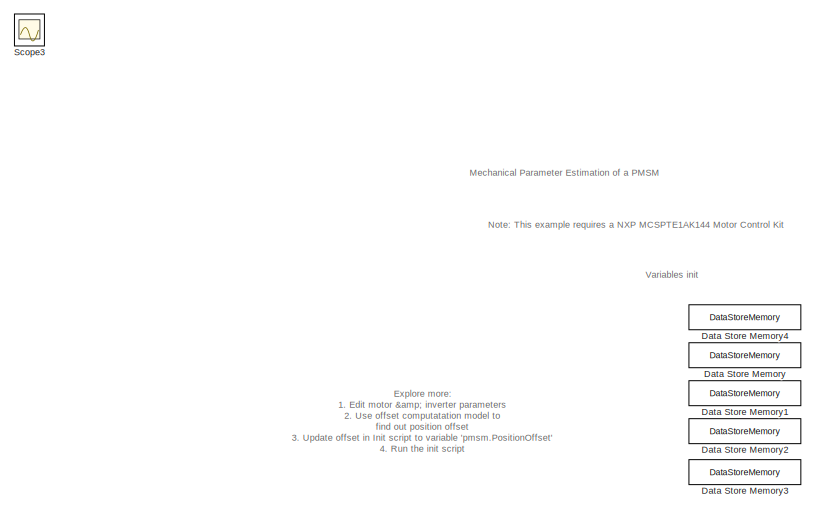
[diagram: root canvas - part 1/2, top left region]
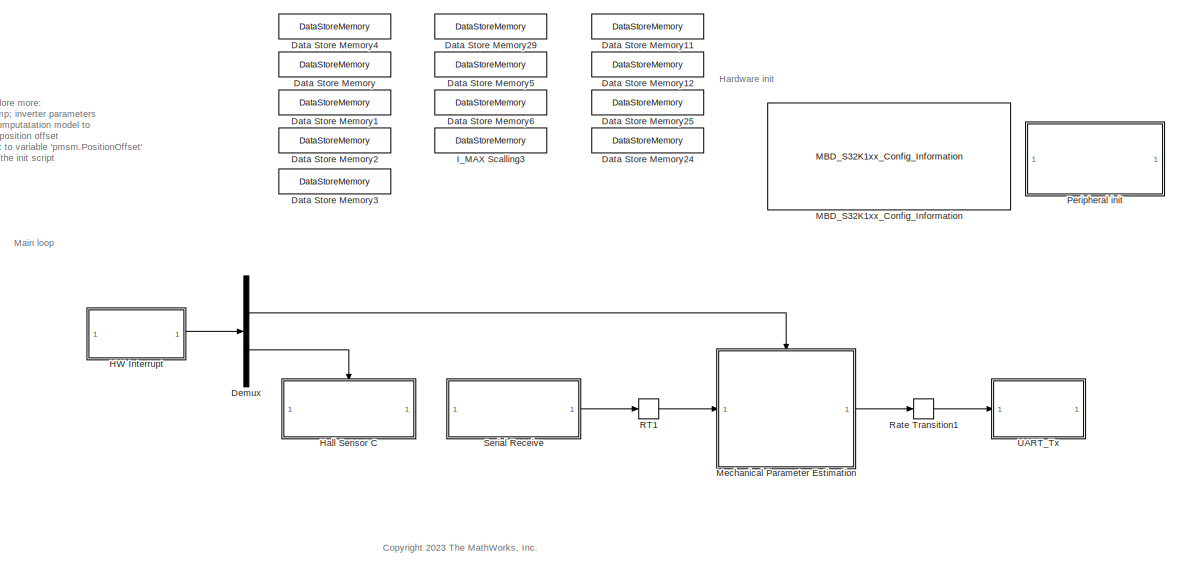
[diagram: root canvas - part 2/2, full width, bottom band]
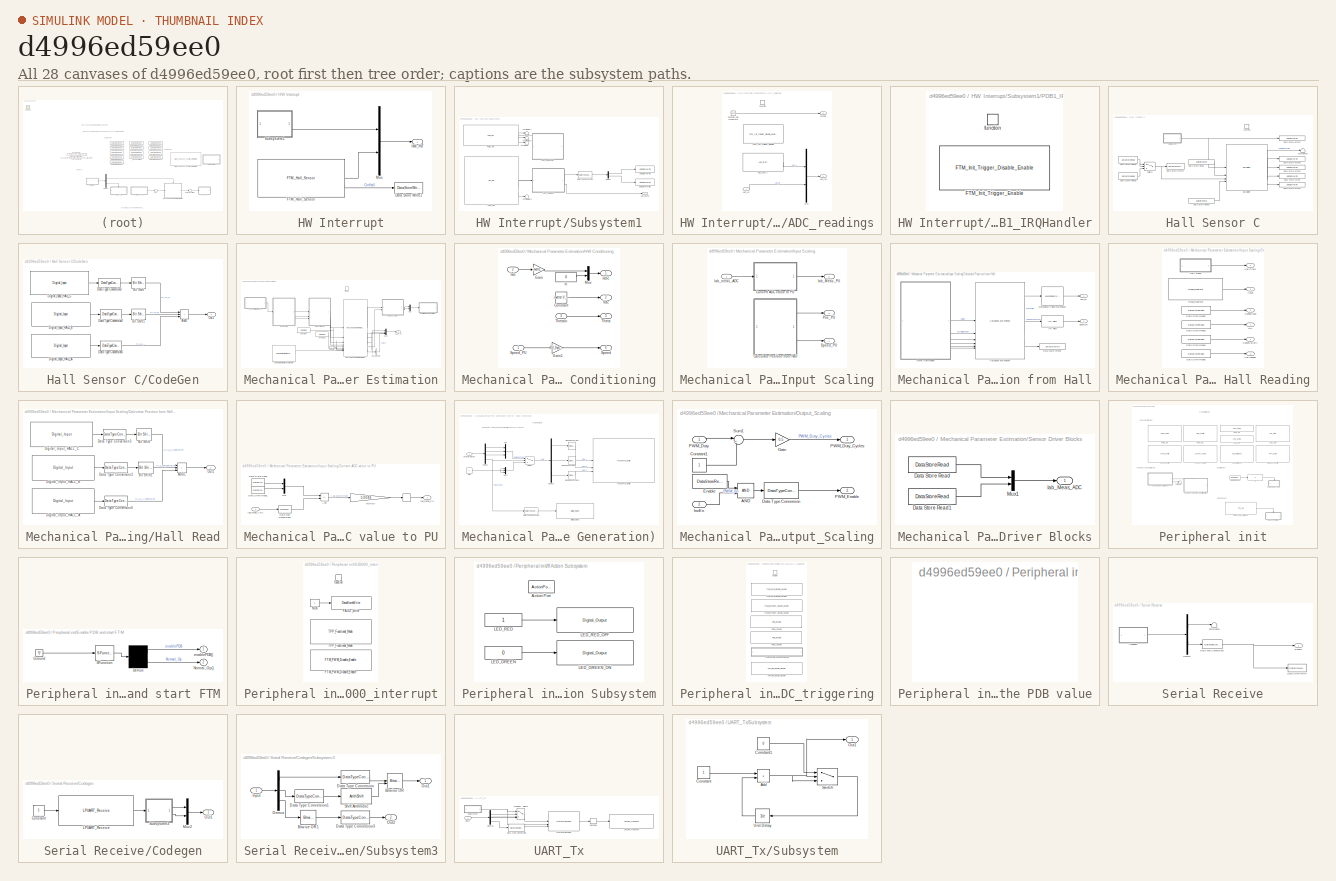
[diagram: thumbnail index - all 28 canvases of the model, root first then tree order]
MODEL slx_d4996ed59ee0
KIND model
CONFIG AbsTol = auto
CONFIG EnableMultiTasking = on
CONFIG FixedStep = auto
CONFIG InitFcn = mbd_s32k_consistency_checks(bdroot(gcs));
CONFIG MaxStep = auto
CONFIG MinStep = auto
CONFIG PreLoadFcn = mcb_pmsm_mech_param_est_MCSPTE1AK144_data;
CONFIG RelTol = 1e-3
CONFIG SampleTimeConstraint = Unconstrained
CONFIG SolverName = FixedStepDiscrete
CONFIG StartTime = 0.0
CONFIG StopTime = 10
BLOCK [DataStoreMemory] Data Store Memory
  DataStoreName = HallStateChangeFlag
  OutDataTypeStr = uint16
  ShowAdditionalParam = off
BLOCK [DataStoreMemory] Data Store Memory1
  DataStoreName = GlobalSpeedCount
  OutDataTypeStr = uint16
  ShowAdditionalParam = off
BLOCK [DataStoreMemory] Data Store Memory11
  DataStoreName = ADC_A
  ShowAdditionalParam = off
BLOCK [DataStoreMemory] Data Store Memory12
  DataStoreName = ADC_B
  ShowAdditionalParam = off
BLOCK [DataStoreMemory] Data Store Memory2
  DataStoreName = GlobalSpeedValidity
  OutDataTypeStr = uint16
  ShowAdditionalParam = off
BLOCK [DataStoreMemory] Data Store Memory24
  DataStoreName = HallCntPrev
  OutDataTypeStr = uint16
  ReadBeforeWriteMsg = warning
  ShowAdditionalParam = off
  WriteAfterReadMsg = warning
  WriteAfterWriteMsg = warning
BLOCK [DataStoreMemory] Data Store Memory25
  DataStoreName = HallCntActual
  OutDataTypeStr = uint16
  ReadBeforeWriteMsg = warning
  ShowAdditionalParam = off
  WriteAfterReadMsg = warning
  WriteAfterWriteMsg = warning
BLOCK [DataStoreMemory] Data Store Memory29
  DataStoreName = Enable
  OutDataTypeStr = boolean
  ShowAdditionalParam = off
BLOCK [DataStoreMemory] Data Store Memory3
  DataStoreName = GlobalDirection
  OutDataTypeStr = int16
  ShowAdditionalParam = off
BLOCK [DataStoreMemory] Data Store Memory4
  DataStoreName = GlobalHallState
  OutDataTypeStr = uint32
  ShowAdditionalParam = off
BLOCK [DataStoreMemory] Data Store Memory5
  DataStoreName = IaOffset
  InitialValue = inverter.CtSensAOffset
  OutDataTypeStr = single
  ShowAdditionalParam = off
BLOCK [DataStoreMemory] Data Store Memory6
  DataStoreName = IbOffset
  InitialValue = inverter.CtSensBOffset
  OutDataTypeStr = single
  ShowAdditionalParam = off
BLOCK [Demux] Demux
  Outputs = 2
BLOCK [SubSystem] HW Interrupt
BLOCK [DataStoreWrite] HW Interrupt/Data Store Write1
  DataStoreName = HallCntActual
  IndexOptions = Index vector (dialog)
  Indices = 1
  OutputSizes = 1
  Priority = 1
BLOCK [Reference] HW Interrupt/FTM_Hall_Sensor  REF=mbd_s32k1xx_ec_toolbox/Motor Control Blocks/FTM Blocks/FTM_Hall_Sensor
  Priority = 1
  SourceBlock = mbd_s32k1xx_ec_toolbox/Motor Control Blocks/FTM Blocks/FTM_Hall_Sensor
  SourceType = FTM_s32k_hall_sensor_block
BLOCK [Outport] HW Interrupt/HW_INT
BLOCK [Mux] HW Interrupt/Mux
  DisplayOption = bar
  Inputs = 2
BLOCK [SubSystem] HW Interrupt/Subsystem1
  TreatAsAtomicUnit = on
BLOCK [Reference] HW Interrupt/Subsystem1/ADC1_ISR  REF=mbd_s32k1xx_ec_toolbox/Motor Control Blocks/ADC Blocks/ADC_ISR
  SourceBlock = mbd_s32k1xx_ec_toolbox/Motor Control Blocks/ADC Blocks/ADC_ISR
  SourceType = adc_s32k_isr_block
BLOCK [Outport] HW Interrupt/Subsystem1/ADC_Event
  VectorParamsAs1DForOutWhenUnconnected = off
BLOCK [SubSystem] HW Interrupt/Subsystem1/ADC_readings
  RTWSystemCode = Nonreusable function
  TreatAsAtomicUnit = on
BLOCK [Reference] HW Interrupt/Subsystem1/ADC_readings/ADC_AD4_IA  REF=mbd_s32k1xx_ec_toolbox/Motor Control Blocks/ADC Blocks/ADC_Start
  Priority = 2
  SourceBlock = mbd_s32k1xx_ec_toolbox/Motor Control Blocks/ADC Blocks/ADC_Start
  SourceType = adc_s32k_start_block
BLOCK [Inport] HW Interrupt/Subsystem1/ADC_readings/ADC_IB
BLOCK [Outport] HW Interrupt/Subsystem1/ADC_readings/ADC_res
  VectorParamsAs1DForOutWhenUnconnected = off
BLOCK [Reference] HW Interrupt/Subsystem1/ADC_readings/FTM_Init_Trigger_Disable  REF=mbd_s32k1xx_ec_toolbox/Motor Control Blocks/FTM Blocks/FTM_Init_Trigger_Disable_Enable
  Priority = 1
  SourceBlock = mbd_s32k1xx_ec_toolbox/Motor Control Blocks/FTM Blocks/FTM_Init_Trigger_Disable_Enable
  SourceType = FTM_s32k_init_disen
BLOCK [Outport] HW Interrupt/Subsystem1/ADC_readings/FcnCall
  Port = 2
  VectorParamsAs1DForOutWhenUnconnected = off
BLOCK [Reference] HW Interrupt/Subsystem1/ADC_readings/Function-Call Generator  REF=simulink/Ports &
Subsystems/Function-Call
Generator
  SourceBlock = simulink/Ports &\nSubsystems/Function-Call\nGenerator
  SourceType = Function-Call Generator
BLOCK [Mux] HW Interrupt/Subsystem1/ADC_readings/Mux
  DisplayOption = bar
  Inputs = 2
BLOCK [TriggerPort] HW Interrupt/Subsystem1/ADC_readings/function
  StatesWhenEnabling = held
  TriggerType = function-call
  VariantControl = (inherit)
BLOCK [DataStoreWrite] HW Interrupt/Subsystem1/Data Store Write
  DataStoreName = ADC_A
  IndexOptions = Index vector (dialog)
  Indices = 1
  OutputSizes = 1
BLOCK [DataStoreWrite] HW Interrupt/Subsystem1/Data Store Write1
  DataStoreName = ADC_B
  IndexOptions = Index vector (dialog)
  Indices = 1
  OutputSizes = 1
BLOCK [DataTypeConversion] HW Interrupt/Subsystem1/Data Type Conversion
  OutDataTypeStr = single
  RndMeth = Floor
  SaturateOnIntegerOverflow = off
BLOCK [Demux] HW Interrupt/Subsystem1/Demux
  Outputs = 2
BLOCK [SubSystem] HW Interrupt/Subsystem1/PDB1_IRQHandler
  RTWSystemCode = Nonreusable function
  TreatAsAtomicUnit = on
BLOCK [Reference] HW Interrupt/Subsystem1/PDB1_IRQHandler/FTM_Init_Trigger_Enable  REF=mbd_s32k1xx_ec_toolbox/Motor Control Blocks/FTM Blocks/FTM_Init_Trigger_Disable_Enable
  SourceBlock = mbd_s32k1xx_ec_toolbox/Motor Control Blocks/FTM Blocks/FTM_Init_Trigger_Disable_Enable
  SourceType = FTM_s32k_init_disen
BLOCK [TriggerPort] HW Interrupt/Subsystem1/PDB1_IRQHandler/function
  StatesWhenEnabling = held
  TriggerType = function-call
  VariantControl = (inherit)
BLOCK [Reference] HW Interrupt/Subsystem1/PDB1_ISR  REF=mbd_s32k1xx_ec_toolbox/Motor Control Blocks/PDB Blocks/PDB_ISR
  SourceBlock = mbd_s32k1xx_ec_toolbox/Motor Control Blocks/PDB Blocks/PDB_ISR
  SourceType = pdb_s32k_isr_block
BLOCK [Terminator] HW Interrupt/Subsystem1/Terminator
BLOCK [Terminator] HW Interrupt/Subsystem1/Terminator1
BLOCK [Terminator] HW Interrupt/Subsystem1/Terminator2
BLOCK [Terminator] HW Interrupt/Subsystem1/Terminator6
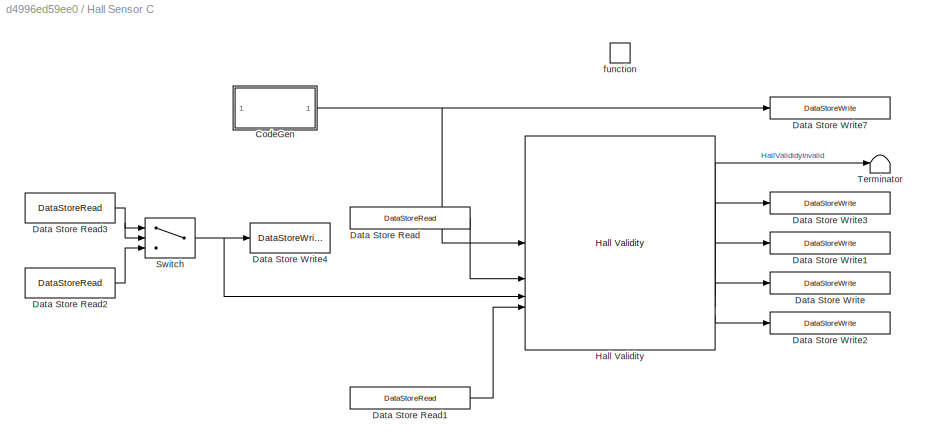
BLOCK [SubSystem] Hall Sensor C
BLOCK [SubSystem] Hall Sensor C/CodeGen
BLOCK [Sum] Hall Sensor C/CodeGen/Add1
  IconShape = rectangular
  Inputs = +++
  OutDataTypeStr = Inherit: Inherit via back propagation
BLOCK [Reference] Hall Sensor C/CodeGen/Bit Shift  REF=hdlsllib/Logic and Bit
Operations/Bit Shift
  SourceBlock = hdlsllib/Logic and Bit\nOperations/Bit Shift
  SourceType = Bit Shift
BLOCK [Reference] Hall Sensor C/CodeGen/Bit Shift1  REF=hdlsllib/Logic and Bit
Operations/Bit Shift
  SourceBlock = hdlsllib/Logic and Bit\nOperations/Bit Shift
  SourceType = Bit Shift
BLOCK [DataTypeConversion] Hall Sensor C/CodeGen/Data Type Conversion2
  OutDataTypeStr = uint32
  RndMeth = Floor
  SaturateOnIntegerOverflow = off
BLOCK [DataTypeConversion] Hall Sensor C/CodeGen/Data Type Conversion3
  OutDataTypeStr = uint32
  RndMeth = Floor
  SaturateOnIntegerOverflow = off
BLOCK [DataTypeConversion] Hall Sensor C/CodeGen/Data Type Conversion6
  OutDataTypeStr = uint32
  RndMeth = Floor
  SaturateOnIntegerOverflow = off
BLOCK [Reference] Hall Sensor C/CodeGen/Digital_Input_HALL_A  REF=mbd_s32k1xx_ec_toolbox/GPIO Blocks/Digital_Input
  SourceBlock = mbd_s32k1xx_ec_toolbox/GPIO Blocks/Digital_Input
  SourceType = gpio_s32k_input
BLOCK [Reference] Hall Sensor C/CodeGen/Digital_Input_HALL_B  REF=mbd_s32k1xx_ec_toolbox/GPIO Blocks/Digital_Input
  SourceBlock = mbd_s32k1xx_ec_toolbox/GPIO Blocks/Digital_Input
  SourceType = gpio_s32k_input
BLOCK [Reference] Hall Sensor C/CodeGen/Digital_Input_HALL_C  REF=mbd_s32k1xx_ec_toolbox/GPIO Blocks/Digital_Input
  SourceBlock = mbd_s32k1xx_ec_toolbox/GPIO Blocks/Digital_Input
  SourceType = gpio_s32k_input
BLOCK [Outport] Hall Sensor C/CodeGen/Out1
BLOCK [DataStoreRead] Hall Sensor C/Data Store Read
  DataStoreName = GlobalHallState
  IndexOptions = Index vector (dialog)
  Indices = 1
  OutputSizes = 1
  Priority = 1
BLOCK [DataStoreRead] Hall Sensor C/Data Store Read1
  DataStoreName = GlobalDirection
  IndexOptions = Index vector (dialog)
  Indices = 1
  OutputSizes = 1
BLOCK [DataStoreRead] Hall Sensor C/Data Store Read2
  DataStoreName = HallCntPrev
  IndexOptions = Index vector (dialog)
  Indices = 1
  OutputSizes = 1
BLOCK [DataStoreRead] Hall Sensor C/Data Store Read3
  DataStoreName = HallCntActual
  IndexOptions = Index vector (dialog)
  Indices = 1
  OutputSizes = 1
BLOCK [DataStoreWrite] Hall Sensor C/Data Store Write
  DataStoreName = GlobalSpeedValidity
  IndexOptions = Index vector (dialog)
  Indices = 1
  OutputSizes = 1
BLOCK [DataStoreWrite] Hall Sensor C/Data Store Write1
  DataStoreName = GlobalDirection
  IndexOptions = Index vector (dialog)
  Indices = 1
  OutputSizes = 1
BLOCK [DataStoreWrite] Hall Sensor C/Data Store Write2
  DataStoreName = HallStateChangeFlag
  IndexOptions = Index vector (dialog)
  Indices = 1
  OutputSizes = 1
BLOCK [DataStoreWrite] Hall Sensor C/Data Store Write3
  DataStoreName = GlobalSpeedCount
  IndexOptions = Index vector (dialog)
  Indices = 1
  OutputSizes = 1
BLOCK [DataStoreWrite] Hall Sensor C/Data Store Write4
  DataStoreName = HallCntPrev
  IndexOptions = Index vector (dialog)
  Indices = 1
  OutputSizes = 1
BLOCK [DataStoreWrite] Hall Sensor C/Data Store Write7
  DataStoreName = GlobalHallState
  IndexOptions = Index vector (dialog)
  Indices = 1
  OutputSizes = 1
  Priority = 2
BLOCK [Reference] Hall Sensor C/Hall Validity  REF=mcbpositiondecoderlib/Hall Validity
  SourceBlock = mcbpositiondecoderlib/Hall Validity
  SourceType = Hall Validity
BLOCK [Switch] Hall Sensor C/Switch
  Criteria = u2 > Threshold
  InputSameDT = off
  SaturateOnIntegerOverflow = off
  Threshold = 100
BLOCK [Terminator] Hall Sensor C/Terminator
BLOCK [TriggerPort] Hall Sensor C/function
  StatesWhenEnabling = held
  TriggerType = function-call
  VariantControl = Variant
BLOCK [DataStoreMemory] I_MAX Scalling3
  DataStoreName = FAULT
  OutDataTypeStr = boolean
  Priority = 0
  ReadBeforeWriteMsg = warning
  ShowAdditionalParam = off
  WriteAfterReadMsg = warning
  WriteAfterWriteMsg = warning
BLOCK [Reference] MBD_S32K1xx_Config_Information  REF=mbd_s32k1xx_ec_toolbox/MBD_S32K1xx_Config_Information
  Priority = 1
  SourceBlock = mbd_s32k1xx_ec_toolbox/MBD_S32K1xx_Config_Information
  SourceType = MBDTBX_EC_S32K
BLOCK [SubSystem] Mechanical Parameter Estimation
BLOCK [BusSelector] Mechanical Parameter Estimation/Bus Selector
  OutputSignals = status
BLOCK [Constant] Mechanical Parameter Estimation/Constant
  OutDataTypeStr = single
  Value = pmsm.Rs
BLOCK [Constant] Mechanical Parameter Estimation/Constant1
  OutDataTypeStr = single
  Value = pmsm.Ld
BLOCK [Inport] Mechanical Parameter Estimation/Enable
BLOCK [SubSystem] Mechanical Parameter Estimation/HW Conditioning
BLOCK [Constant] Mechanical Parameter Estimation/HW Conditioning/Constant
  OutDataTypeStr = dataType
  Value = inverter.V_dc
BLOCK [Gain] Mechanical Parameter Estimation/HW Conditioning/Gain
  Gain = inverter.ISenseMax
  OutDataTypeStr = Inherit: Same as input
  RndMeth = Simplest
BLOCK [Gain] Mechanical Parameter Estimation/HW Conditioning/Gain1
  Commented = through
  Gain = PU_System.N_base
  OutDataTypeStr = Inherit: Same as input
  RndMeth = Simplest
BLOCK [Inport] Mechanical Parameter Estimation/HW Conditioning/Iab
  Port = 2
BLOCK [Outport] Mechanical Parameter Estimation/HW Conditioning/Iabc
BLOCK [Constant] Mechanical Parameter Estimation/HW Conditioning/Ic
  OutDataTypeStr = single
  Value = 0
BLOCK [Mux] Mechanical Parameter Estimation/HW Conditioning/Mux
  DisplayOption = bar
  Inputs = 2
BLOCK [Outport] Mechanical Parameter Estimation/HW Conditioning/Speed
  Port = 4
BLOCK [Inport] Mechanical Parameter Estimation/HW Conditioning/Speed_PU
BLOCK [Outport] Mechanical Parameter Estimation/HW Conditioning/Theta
  Port = 3
BLOCK [Inport] Mechanical Parameter Estimation/HW Conditioning/ThetaIn
  Port = 3
BLOCK [Outport] Mechanical Parameter Estimation/HW Conditioning/Vdc
  Port = 2
BLOCK [SubSystem] Mechanical Parameter Estimation/Input Scaling
  VariantControl = (codegen)
BLOCK [SubSystem] Mechanical Parameter Estimation/Input Scaling/Calculate Position from Hall
BLOCK [SubSystem] Mechanical Parameter Estimation/Input Scaling/Calculate Position from Hall/Atomic Hall Reading
  TreatAsAtomicUnit = on
BLOCK [Outport] Mechanical Parameter Estimation/Input Scaling/Calculate Position from Hall/Atomic Hall Reading/Count
  Port = 2
BLOCK [DataStoreRead] Mechanical Parameter Estimation/Input Scaling/Calculate Position from Hall/Atomic Hall Reading/Data Store Read2
  DataStoreName = GlobalSpeedCount
  IndexOptions = Index vector (dialog)
  Indices = 1
  OutputSizes = 1
BLOCK [DataStoreRead] Mechanical Parameter Estimation/Input Scaling/Calculate Position from Hall/Atomic Hall Reading/Data Store Read3
  DataStoreName = GlobalDirection
  IndexOptions = Index vector (dialog)
  Indices = 1
  OutputSizes = 1
BLOCK [DataStoreRead] Mechanical Parameter Estimation/Input Scaling/Calculate Position from Hall/Atomic Hall Reading/Data Store Read4
  DataStoreName = GlobalSpeedValidity
  IndexOptions = Index vector (dialog)
  Indices = 1
  OutputSizes = 1
BLOCK [DataStoreRead] Mechanical Parameter Estimation/Input Scaling/Calculate Position from Hall/Atomic Hall Reading/Data Store Read5
  DataStoreName = HallStateChangeFlag
  IndexOptions = Index vector (dialog)
  Indices = 1
  OutputSizes = 1
  Priority = 1
BLOCK [Outport] Mechanical Parameter Estimation/Input Scaling/Calculate Position from Hall/Atomic Hall Reading/Dir
  Port = 4
BLOCK [SubSystem] Mechanical Parameter Estimation/Input Scaling/Calculate Position from Hall/Atomic Hall Reading/Hall Read
BLOCK [Sum] Mechanical Parameter Estimation/Input Scaling/Calculate Position from Hall/Atomic Hall Reading/Hall Read/Add1
  IconShape = rectangular
  Inputs = +++
  OutDataTypeStr = Inherit: Inherit via back propagation
BLOCK [Reference] Mechanical Parameter Estimation/Input Scaling/Calculate Position from Hall/Atomic Hall Reading/Hall Read/Bit Shift  REF=hdlsllib/Logic and Bit
Operations/Bit Shift
  SourceBlock = hdlsllib/Logic and Bit\nOperations/Bit Shift
  SourceType = Bit Shift
BLOCK [Reference] Mechanical Parameter Estimation/Input Scaling/Calculate Position from Hall/Atomic Hall Reading/Hall Read/Bit Shift1  REF=hdlsllib/Logic and Bit
Operations/Bit Shift
  SourceBlock = hdlsllib/Logic and Bit\nOperations/Bit Shift
  SourceType = Bit Shift
BLOCK [DataTypeConversion] Mechanical Parameter Estimation/Input Scaling/Calculate Position from Hall/Atomic Hall Reading/Hall Read/Data Type Conversion2
  OutDataTypeStr = uint32
  RndMeth = Floor
  SaturateOnIntegerOverflow = off
BLOCK [DataTypeConversion] Mechanical Parameter Estimation/Input Scaling/Calculate Position from Hall/Atomic Hall Reading/Hall Read/Data Type Conversion3
  OutDataTypeStr = uint32
  RndMeth = Floor
  SaturateOnIntegerOverflow = off
BLOCK [DataTypeConversion] Mechanical Parameter Estimation/Input Scaling/Calculate Position from Hall/Atomic Hall Reading/Hall Read/Data Type Conversion6
  OutDataTypeStr = uint32
  RndMeth = Floor
  SaturateOnIntegerOverflow = off
BLOCK [Reference] Mechanical Parameter Estimation/Input Scaling/Calculate Position from Hall/Atomic Hall Reading/Hall Read/Digital_Input_HALL_A  REF=mbd_s32k1xx_ec_toolbox/GPIO Blocks/Digital_Input
  SourceBlock = mbd_s32k1xx_ec_toolbox/GPIO Blocks/Digital_Input
  SourceType = gpio_s32k_input
BLOCK [Reference] Mechanical Parameter Estimation/Input Scaling/Calculate Position from Hall/Atomic Hall Reading/Hall Read/Digital_Input_HALL_B  REF=mbd_s32k1xx_ec_toolbox/GPIO Blocks/Digital_Input
  SourceBlock = mbd_s32k1xx_ec_toolbox/GPIO Blocks/Digital_Input
  SourceType = gpio_s32k_input
BLOCK [Reference] Mechanical Parameter Estimation/Input Scaling/Calculate Position from Hall/Atomic Hall Reading/Hall Read/Digital_Input_HALL_C  REF=mbd_s32k1xx_ec_toolbox/GPIO Blocks/Digital_Input
  SourceBlock = mbd_s32k1xx_ec_toolbox/GPIO Blocks/Digital_Input
  SourceType = gpio_s32k_input
BLOCK [Outport] Mechanical Parameter Estimation/Input Scaling/Calculate Position from Hall/Atomic Hall Reading/Hall Read/Out1
BLOCK [Outport] Mechanical Parameter Estimation/Input Scaling/Calculate Position from Hall/Atomic Hall Reading/HallState
BLOCK [Outport] Mechanical Parameter Estimation/Input Scaling/Calculate Position from Hall/Atomic Hall Reading/Hallchange
  Port = 6
BLOCK [Reference] Mechanical Parameter Estimation/Input Scaling/Calculate Position from Hall/Atomic Hall Reading/Read_Register  REF=mbd_s32k1xx_ec_toolbox/Utility Blocks/Read_Register
  SourceBlock = mbd_s32k1xx_ec_toolbox/Utility Blocks/Read_Register
  SourceType = register_s32k_read
BLOCK [Outport] Mechanical Parameter Estimation/Input Scaling/Calculate Position from Hall/Atomic Hall Reading/SpeedCount
  Port = 3
BLOCK [Outport] Mechanical Parameter Estimation/Input Scaling/Calculate Position from Hall/Atomic Hall Reading/SpeedValidity
  Port = 5
BLOCK [DataStoreWrite] Mechanical Parameter Estimation/Input Scaling/Calculate Position from Hall/Data Store Write2
  DataStoreName = HallStateChangeFlag
  IndexOptions = Index vector (dialog)
  Indices = 1
  OutputSizes = 1
  Priority = 2
BLOCK [Reference] Mechanical Parameter Estimation/Input Scaling/Calculate Position from Hall/Hall Speed and Position  REF=mcbpositiondecoderlib/Hall Speed and Position
  SourceBlock = mcbpositiondecoderlib/Hall Speed and Position
  SourceType = Hall Speed and Position
BLOCK [Reference] Mechanical Parameter Estimation/Input Scaling/Calculate Position from Hall/IIR Filter  REF=mcbcontrolslib/IIR Filter
  LibrarySourceBlock = mcblib/Signal Management/IIR Filter
  SourceBlock = mcbcontrolslib/IIR Filter
  SourceType = IIR Filter
BLOCK [Reference] Mechanical Parameter Estimation/Input Scaling/Calculate Position from Hall/Mechanical to Electrical Position  REF=mcbpositiondecoderlib/Mechanical to Electrical Position
  SourceBlock = mcbpositiondecoderlib/Mechanical to Electrical Position
  SourceType = Mechanical to Electrical Position
BLOCK [Outport] Mechanical Parameter Estimation/Input Scaling/Calculate Position from Hall/Pos_PU
  InitialOutput = 0
  VectorParamsAs1DForOutWhenUnconnected = off
BLOCK [Outport] Mechanical Parameter Estimation/Input Scaling/Calculate Position from Hall/Speed_PU
  InitialOutput = 0
  Port = 2
  VectorParamsAs1DForOutWhenUnconnected = off
BLOCK [SubSystem] Mechanical Parameter Estimation/Input Scaling/Convert ADC value to PU
BLOCK [UnaryMinus] Mechanical Parameter Estimation/Input Scaling/Convert ADC value to PU/.
BLOCK [Sum] Mechanical Parameter Estimation/Input Scaling/Convert ADC value to PU/Add
  IconShape = rectangular
  Inputs = -+
BLOCK [DataStoreRead] Mechanical Parameter Estimation/Input Scaling/Convert ADC value to PU/Data Store Read
  DataStoreName = IaOffset
  IndexOptions = Index vector (dialog)
  Indices = 1
  OutputSizes = 1
BLOCK [DataStoreRead] Mechanical Parameter Estimation/Input Scaling/Convert ADC value to PU/Data Store Read1
  DataStoreName = IbOffset
  IndexOptions = Index vector (dialog)
  Indices = 1
  OutputSizes = 1
BLOCK [DataTypeConversion] Mechanical Parameter Estimation/Input Scaling/Convert ADC value to PU/Data Type Conversion2
  OutDataTypeStr = dataType
  RndMeth = Simplest
  SaturateOnIntegerOverflow = off
BLOCK [Inport] Mechanical Parameter Estimation/Input Scaling/Convert ADC value to PU/Iab_meas_ADC
BLOCK [Outport] Mechanical Parameter Estimation/Input Scaling/Convert ADC value to PU/Iab_meas_PU
  InitialOutput = 0
  VectorParamsAs1DForOutWhenUnconnected = off
BLOCK [Gain] Mechanical Parameter Estimation/Input Scaling/Convert ADC value to PU/Multiply
  Gain = 1/2048
  RndMeth = Simplest
BLOCK [Mux] Mechanical Parameter Estimation/Input Scaling/Convert ADC value to PU/Mux
  DisplayOption = bar
  Inputs = 2
BLOCK [Outport] Mechanical Parameter Estimation/Input Scaling/Iab_Meas_PU
  Port = 2
  VectorParamsAs1DForOutWhenUnconnected = off
BLOCK [Inport] Mechanical Parameter Estimation/Input Scaling/Iab_meas_ADC
BLOCK [Outport] Mechanical Parameter Estimation/Input Scaling/Pos_PU
  Port = 3
  VectorParamsAs1DForOutWhenUnconnected = off
BLOCK [Outport] Mechanical Parameter Estimation/Input Scaling/Speed_PU
  VectorParamsAs1DForOutWhenUnconnected = off
BLOCK [SubSystem] Mechanical Parameter Estimation/Inverter (Code Generation)
  Priority = 5
BLOCK [DataTypeConversion] Mechanical Parameter Estimation/Inverter (Code Generation)/Data Type Conversion
  RndMeth = Floor
  SaturateOnIntegerOverflow = off
BLOCK [Demux] Mechanical Parameter Estimation/Inverter (Code Generation)/Demux
BLOCK [Demux] Mechanical Parameter Estimation/Inverter (Code Generation)/Demux1
  Outputs = 3
BLOCK [Reference] Mechanical Parameter Estimation/Inverter (Code Generation)/Digital_Output  REF=mbd_s32k1xx_ec_toolbox/GPIO Blocks/Digital_Output
  SourceBlock = mbd_s32k1xx_ec_toolbox/GPIO Blocks/Digital_Output
  SourceType = gpio_s32k_output
BLOCK [Reference] Mechanical Parameter Estimation/Inverter (Code Generation)/FTM_PWM_Config  REF=mbd_s32k1xx_ec_toolbox/Motor Control Blocks/FTM Blocks/FTM_PWM_Config
  SourceBlock = mbd_s32k1xx_ec_toolbox/Motor Control Blocks/FTM Blocks/FTM_PWM_Config
  SourceType = FTM_s32k_pwm_config_block
BLOCK [Inport] Mechanical Parameter Estimation/Inverter (Code Generation)/Inverter Signals
BLOCK [Mux] Mechanical Parameter Estimation/Inverter (Code Generation)/Mux
  DisplayOption = bar
  Inputs = 3
BLOCK [Mux] Mechanical Parameter Estimation/Inverter (Code Generation)/Mux2
  DisplayOption = bar
  Inputs = 3
BLOCK [SignalConversion] Mechanical Parameter Estimation/Inverter (Code Generation)/Signal Conversion
  OverrideOpt = off
BLOCK [SignalConversion] Mechanical Parameter Estimation/Inverter (Code Generation)/Signal Conversion1
  OverrideOpt = off
BLOCK [SignalConversion] Mechanical Parameter Estimation/Inverter (Code Generation)/Signal Conversion2
  OverrideOpt = off
BLOCK [Switch] Mechanical Parameter Estimation/Inverter (Code Generation)/Switch1
  InputSameDT = off
  SaturateOnIntegerOverflow = off
  Threshold = 0.5
BLOCK [Constant] Mechanical Parameter Estimation/Inverter (Code Generation)/stop
  OutDataTypeStr = Inherit: Inherit via back propagation
  Value = 0
BLOCK [Reference] Mechanical Parameter Estimation/Mechanical Parameter Estimator  REF=mcbpmsmparamestlib/Mechanical Parameter Estimator
  LibrarySourceBlock = mcblib/Parameter Estimation/PMSM Parameter Estimation/Mechanical Parameter Estimator
  SourceBlock = mcbpmsmparamestlib/Mechanical Parameter Estimator
  SourceType = PMSM Mechanical Parameter Estimator
BLOCK [Mux] Mechanical Parameter Estimation/Mux
  DisplayOption = bar
  Inputs = 2
BLOCK [Mux] Mechanical Parameter Estimation/Mux1
  DisplayOption = bar
BLOCK [SubSystem] Mechanical Parameter Estimation/Output_Scaling
  Priority = 4
BLOCK [Logic] Mechanical Parameter Estimation/Output_Scaling/AND
  AllPortsSameDT = off
  IconShape = distinctive
  OutDataTypeStr = boolean
BLOCK [Constant] Mechanical Parameter Estimation/Output_Scaling/Constant1
  OutDataTypeStr = Inherit: Inherit via back propagation
BLOCK [DataTypeConversion] Mechanical Parameter Estimation/Output_Scaling/Data Type Conversion
  OutDataTypeStr = dataType
  RndMeth = Floor
  SaturateOnIntegerOverflow = off
BLOCK [DataStoreRead] Mechanical Parameter Estimation/Output_Scaling/Enable
  DataStoreName = Enable
  IndexOptions = Index vector (dialog)
  Indices = 1
  OutputSizes = 1
BLOCK [Gain] Mechanical Parameter Estimation/Output_Scaling/Gain
  Gain = 0.5
  OutDataTypeStr = Inherit: Inherit via back propagation
  RndMeth = Simplest
BLOCK [Inport] Mechanical Parameter Estimation/Output_Scaling/InvEn
  Port = 2
BLOCK [Inport] Mechanical Parameter Estimation/Output_Scaling/PWM_Duty
BLOCK [Outport] Mechanical Parameter Estimation/Output_Scaling/PWM_Duty_Cycles
BLOCK [Outport] Mechanical Parameter Estimation/Output_Scaling/PWM_Enable
  Port = 2
BLOCK [Sum] Mechanical Parameter Estimation/Output_Scaling/Sum1
  AccumDataTypeStr = Inherit: Same as first input
  Inputs = |++
  RndMeth = Simplest
BLOCK [Reference] Mechanical Parameter Estimation/Parameter Estimation Configurator  REF=mcbpmsmparamestlib/Parameter Estimation Configurator
  LibrarySourceBlock = mcblib/Parameter Estimation/PMSM Parameter Estimation/Parameter Estimation Configurator
  SourceBlock = mcbpmsmparamestlib/Parameter Estimation Configurator
  SourceType = PMSM Parameter Estimation Configurator
BLOCK [SubSystem] Mechanical Parameter Estimation/Sensor Driver Blocks
  VariantControl = (codegen)
BLOCK [DataStoreRead] Mechanical Parameter Estimation/Sensor Driver Blocks/Data Store Read
  DataStoreName = ADC_A
  IndexOptions = Index vector (dialog)
  Indices = 1
  OutputSizes = 1
BLOCK [DataStoreRead] Mechanical Parameter Estimation/Sensor Driver Blocks/Data Store Read1
  DataStoreName = ADC_B
  IndexOptions = Index vector (dialog)
  Indices = 1
  OutputSizes = 1
BLOCK [Outport] Mechanical Parameter Estimation/Sensor Driver Blocks/Iab_Meas_ADC
BLOCK [Mux] Mechanical Parameter Estimation/Sensor Driver Blocks/Mux1
  DisplayOption = bar
  Inputs = 2
BLOCK [TriggerPort] Mechanical Parameter Estimation/Trigger
  StatesWhenEnabling = held
  TriggerType = function-call
  VariantControl = Variant
BLOCK [Outport] Mechanical Parameter Estimation/UART_TX
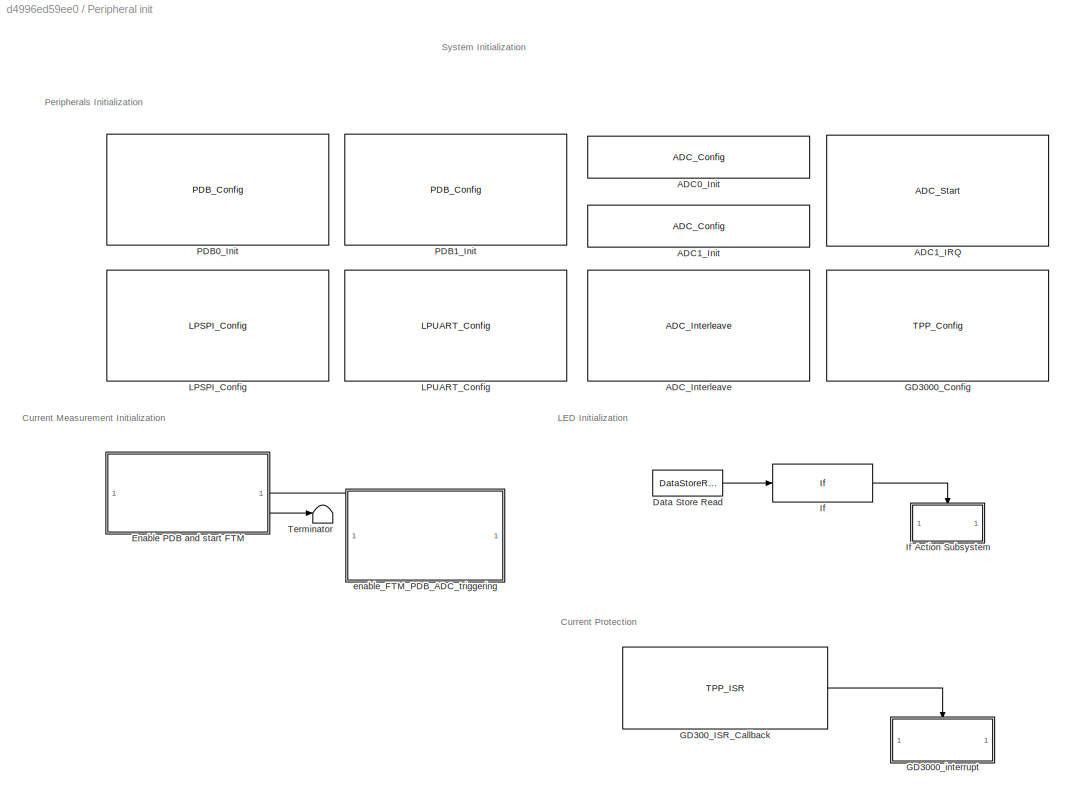
BLOCK [SubSystem] Peripheral init
  Priority = 0
  TreatAsAtomicUnit = on
BLOCK [Reference] Peripheral init/ADC0_Init  REF=mbd_s32k1xx_ec_toolbox/Motor Control Blocks/ADC Blocks/ADC_Config
  Priority = 3
  SourceBlock = mbd_s32k1xx_ec_toolbox/Motor Control Blocks/ADC Blocks/ADC_Config
  SourceType = adc_s32k_config_block
BLOCK [Reference] Peripheral init/ADC1_IRQ  REF=mbd_s32k1xx_ec_toolbox/Motor Control Blocks/ADC Blocks/ADC_Start
  Priority = 5
  SourceBlock = mbd_s32k1xx_ec_toolbox/Motor Control Blocks/ADC Blocks/ADC_Start
  SourceType = adc_s32k_start_block
BLOCK [Reference] Peripheral init/ADC1_Init  REF=mbd_s32k1xx_ec_toolbox/Motor Control Blocks/ADC Blocks/ADC_Config
  Priority = 4
  SourceBlock = mbd_s32k1xx_ec_toolbox/Motor Control Blocks/ADC Blocks/ADC_Config
  SourceType = adc_s32k_config_block
BLOCK [Reference] Peripheral init/ADC_Interleave  REF=mbd_s32k1xx_ec_toolbox/Motor Control Blocks/ADC Blocks/ADC_Interleave
  SourceBlock = mbd_s32k1xx_ec_toolbox/Motor Control Blocks/ADC Blocks/ADC_Interleave
  SourceType = adc_s32k_interleave_block
BLOCK [DataStoreRead] Peripheral init/Data Store Read
  DataStoreName = FAULT
  IndexOptions = Index vector (dialog)
  Indices = 1
  OutputSizes = 1
BLOCK [SubSystem] Peripheral init/Enable PDB and start FTM
  ErrorFcn = Stateflow.Translate.translate
  PermitHierarchicalResolution = ExplicitOnly
  SFBlockType = Chart
  TreatAsAtomicUnit = on
BLOCK [Demux] Peripheral init/Enable PDB and start FTM/ Demux 
  Outputs = 2
BLOCK [Ground] Peripheral init/Enable PDB and start FTM/ Ground 
BLOCK [S-Function] Peripheral init/Enable PDB and start FTM/ SFunction 
  EnableBusSupport = on
  FunctionName = sf_sfun
  PortCounts = [1 1]
  SFcnIsStateOwnerBlock = off
  SFunctionDeploymentMode = off
  Tag = Stateflow S-Function 1
BLOCK [Outport] Peripheral init/Enable PDB and start FTM/Normal_Op()
  Port = 2
  VectorParamsAs1DForOutWhenUnconnected = off
BLOCK [Outport] Peripheral init/Enable PDB and start FTM/enablePDB()
  VectorParamsAs1DForOutWhenUnconnected = off
BLOCK [Reference] Peripheral init/GD3000_Config  REF=mbd_msd_ec_toolbox/TPP/TPP_Config
  Priority = 1
  SourceBlock = mbd_msd_ec_toolbox/TPP/TPP_Config
  SourceType = tpp_s32k_config
BLOCK [SubSystem] Peripheral init/GD3000_interrupt
  TreatAsAtomicUnit = on
BLOCK [DataStoreWrite] Peripheral init/GD3000_interrupt/FAULT_write
  DataStoreName = FAULT
  IndexOptions = Index vector (dialog)
  Indices = 1
  OutputSizes = 1
BLOCK [Reference] Peripheral init/GD3000_interrupt/FTM_PWM_Disable_Enable  REF=mbd_s32k1xx_ec_toolbox/Motor Control Blocks/FTM Blocks/FTM_PWM_Disable_Enable
  SourceBlock = mbd_s32k1xx_ec_toolbox/Motor Control Blocks/FTM Blocks/FTM_PWM_Disable_Enable
  SourceType = FTM_s32k_pwm_disen
BLOCK [Constant] Peripheral init/GD3000_interrupt/NOK
  OutDataTypeStr = boolean
BLOCK [Reference] Peripheral init/GD3000_interrupt/TPP_Functional_Mode  REF=mbd_msd_ec_toolbox/TPP/TPP_Functional_Mode
  SourceBlock = mbd_msd_ec_toolbox/TPP/TPP_Functional_Mode
  SourceType = TPP_functional_mode
BLOCK [TriggerPort] Peripheral init/GD3000_interrupt/function
  StatesWhenEnabling = held
  TriggerType = function-call
  VariantControl = Variant
BLOCK [Reference] Peripheral init/GD300_ISR_Callback   REF=mbd_msd_ec_toolbox/TPP/TPP_ISR
  SourceBlock = mbd_msd_ec_toolbox/TPP/TPP_ISR
  SourceType = tpp_s32k_isr
BLOCK [If] Peripheral init/If
  IfExpression = u1 == 0
  ShowElse = off
BLOCK [SubSystem] Peripheral init/If Action Subsystem
  TreatAsAtomicUnit = on
BLOCK [ActionPort] Peripheral init/If Action Subsystem/Action Port
  ActionPortLabel = if(u1 == 0)
BLOCK [Constant] Peripheral init/If Action Subsystem/LED_GREEN
  OutDataTypeStr = boolean
  SampleTime = -1
  Value = 0
BLOCK [Reference] Peripheral init/If Action Subsystem/LED_GREEN_ON  REF=mbd_s32k1xx_ec_toolbox/GPIO Blocks/Digital_Output
  SourceBlock = mbd_s32k1xx_ec_toolbox/GPIO Blocks/Digital_Output
  SourceType = gpio_s32k_output
BLOCK [Constant] Peripheral init/If Action Subsystem/LED_RED
  OutDataTypeStr = boolean
  SampleTime = -1
BLOCK [Reference] Peripheral init/If Action Subsystem/LED_RED_OFF  REF=mbd_s32k1xx_ec_toolbox/GPIO Blocks/Digital_Output
  SourceBlock = mbd_s32k1xx_ec_toolbox/GPIO Blocks/Digital_Output
  SourceType = gpio_s32k_output
BLOCK [Reference] Peripheral init/LPSPI_Config   REF=mbd_s32k1xx_ec_toolbox/Communication Blocks/SPI Blocks/LPSPI_Config

  SourceBlock = mbd_s32k1xx_ec_toolbox/Communication Blocks/SPI Blocks/LPSPI_Config
  SourceType = lpspi_s32k_config
BLOCK [Reference] Peripheral init/LPUART_Config  REF=mbd_s32k1xx_ec_toolbox/Communication Blocks/UART Blocks/LPUART_Config
  Priority = 1
  SourceBlock = mbd_s32k1xx_ec_toolbox/Communication Blocks/UART Blocks/LPUART_Config
  SourceType = lpuart_s32k_config
BLOCK [Reference] Peripheral init/PDB0_Init  REF=mbd_s32k1xx_ec_toolbox/Motor Control Blocks/PDB Blocks/PDB_Config
  Priority = 1
  SourceBlock = mbd_s32k1xx_ec_toolbox/Motor Control Blocks/PDB Blocks/PDB_Config
  SourceType = pdb_s32k_config_block
BLOCK [Reference] Peripheral init/PDB1_Init  REF=mbd_s32k1xx_ec_toolbox/Motor Control Blocks/PDB Blocks/PDB_Config
  Priority = 2
  SourceBlock = mbd_s32k1xx_ec_toolbox/Motor Control Blocks/PDB Blocks/PDB_Config
  SourceType = pdb_s32k_config_block
BLOCK [Terminator] Peripheral init/Terminator
BLOCK [SubSystem] Peripheral init/enable_FTM_PDB_ADC_triggering
  RTWSystemCode = Inline
  TreatAsAtomicUnit = on
BLOCK [SubSystem] Peripheral init/enable_FTM_PDB_ADC_triggering/Custom code to reload the PDB value
  CopyFcn = cccopyfcn(gcb)
  OpenFcn = ccopenfcn('System Outputs Function')
  Priority = 6
BLOCK [Reference] Peripheral init/enable_FTM_PDB_ADC_triggering/FTM_Init_Trigger_Disable_Enable  REF=mbd_s32k1xx_ec_toolbox/Motor Control Blocks/FTM Blocks/FTM_Init_Trigger_Disable_Enable
  Priority = 3
  SourceBlock = mbd_s32k1xx_ec_toolbox/Motor Control Blocks/FTM Blocks/FTM_Init_Trigger_Disable_Enable
  SourceType = FTM_s32k_init_disen
BLOCK [Reference] Peripheral init/enable_FTM_PDB_ADC_triggering/FTM_PWM_Disable_Enable  REF=mbd_s32k1xx_ec_toolbox/Motor Control Blocks/FTM Blocks/FTM_PWM_Disable_Enable
  Priority = 1
  SourceBlock = mbd_s32k1xx_ec_toolbox/Motor Control Blocks/FTM Blocks/FTM_PWM_Disable_Enable
  SourceType = FTM_s32k_pwm_disen
BLOCK [Reference] Peripheral init/enable_FTM_PDB_ADC_triggering/PDB0_Enable  REF=mbd_s32k1xx_ec_toolbox/Motor Control Blocks/PDB Blocks/PDB_Enable
  Priority = 4
  SourceBlock = mbd_s32k1xx_ec_toolbox/Motor Control Blocks/PDB Blocks/PDB_Enable
  SourceType = pdb_s32k_enable_block
BLOCK [Reference] Peripheral init/enable_FTM_PDB_ADC_triggering/PDB1_Enable  REF=mbd_s32k1xx_ec_toolbox/Motor Control Blocks/PDB Blocks/PDB_Enable
  Priority = 5
  SourceBlock = mbd_s32k1xx_ec_toolbox/Motor Control Blocks/PDB Blocks/PDB_Enable
  SourceType = pdb_s32k_enable_block
BLOCK [Reference] Peripheral init/enable_FTM_PDB_ADC_triggering/TPP_ISR_Enable_Disable  REF=mbd_msd_ec_toolbox/TPP/TPP_ISR_Enable_Disable
  Priority = 7
  SourceBlock = mbd_msd_ec_toolbox/TPP/TPP_ISR_Enable_Disable
  SourceType = tpp_s32k_int_en_dis
BLOCK [TriggerPort] Peripheral init/enable_FTM_PDB_ADC_triggering/function
  StatesWhenEnabling = held
  TriggerType = function-call
  VariantControl = (inherit)
BLOCK [RateTransition] RT1
  Deterministic = off
  OutPortSampleTime = Ts
BLOCK [RateTransition] Rate Transition1
BLOCK [Scope] Scope3
  Floating = off
  IOType = viewer
  NumInputPorts = 1
  ScopeSpecificationString = Simulink.scopes.TimeScopeBlockCfg('CurrentConfiguration', extmgr.ConfigurationSet(extmgr.Configuration('Core','General UI',true),extmgr.Configuration('Core','Source UI',true),extmgr.Configuration('Sources','WiredSimulink',true,'DataLoggingVariableName','ScopeData1'),extmgr.Configuration('Visuals','Time Domain',true,'SerializedDisplays',{struct('MinYLimReal','-1.00000','MaxYLimReal','1.00000','YLab...<+2677ch>
BLOCK [SubSystem] Serial Receive
  RTWMemSecFuncExecute = code_ramfuncs
  SystemSampleTime = 1e-3
BLOCK [SubSystem] Serial Receive/Codegen
BLOCK [Constant] Serial Receive/Codegen/Constant
  OutDataTypeStr = Inherit: Inherit via back propagation
  Value = 3
BLOCK [Reference] Serial Receive/Codegen/LPUART_Receive  REF=mbd_s32k1xx_ec_toolbox/Communication Blocks/UART Blocks/LPUART_Receive
  SourceBlock = mbd_s32k1xx_ec_toolbox/Communication Blocks/UART Blocks/LPUART_Receive
  SourceType = lpuart_s32k_receive
BLOCK [Mux] Serial Receive/Codegen/Mux2
  DisplayOption = bar
  Inputs = 2
BLOCK [Outport] Serial Receive/Codegen/Out1
BLOCK [SubSystem] Serial Receive/Codegen/Subsystem3
BLOCK [Reference] Serial Receive/Codegen/Subsystem3/Bitwise OR  REF=simulink/Logic and Bit
Operations/Bitwise
Operator
  SourceBlock = simulink/Logic and Bit\nOperations/Bitwise\nOperator
  SourceType = Bitwise Operator
BLOCK [Reference] Serial Receive/Codegen/Subsystem3/Bitwise OR1  REF=simulink/Logic and Bit
Operations/Bitwise
Operator
  SourceBlock = simulink/Logic and Bit\nOperations/Bitwise\nOperator
  SourceType = Bitwise Operator
BLOCK [DataTypeConversion] Serial Receive/Codegen/Subsystem3/Data Type Conversion
  OutDataTypeStr = uint16
  RndMeth = Simplest
  SaturateOnIntegerOverflow = off
BLOCK [DataTypeConversion] Serial Receive/Codegen/Subsystem3/Data Type Conversion1
  ConvertRealWorld = Stored Integer (SI)
  OutDataTypeStr = uint16
  RndMeth = Simplest
  SaturateOnIntegerOverflow = off
BLOCK [DataTypeConversion] Serial Receive/Codegen/Subsystem3/Data Type Conversion3
  ConvertRealWorld = Stored Integer (SI)
  OutDataTypeStr = uint16
  RndMeth = Simplest
  SaturateOnIntegerOverflow = off
BLOCK [Demux] Serial Receive/Codegen/Subsystem3/Demux
  Outputs = 3
BLOCK [Inport] Serial Receive/Codegen/Subsystem3/Input
  PortDimensions = 3
BLOCK [Outport] Serial Receive/Codegen/Subsystem3/Out1
BLOCK [Outport] Serial Receive/Codegen/Subsystem3/Out2
  Port = 2
BLOCK [ArithShift] Serial Receive/Codegen/Subsystem3/Shift Arithmetic
  BitShiftDirection = Left
  BitShiftNumber = 8
  InputPortMap = u0
BLOCK [DataStoreWrite] Serial Receive/Data Store Write
  DataStoreName = Enable
  IndexOptions = Index vector (dialog)
  Indices = 1
  OutputSizes = 1
BLOCK [DataTypeConversion] Serial Receive/Data Type Conversion3
  OutDataTypeStr = boolean
  RndMeth = Simplest
  SaturateOnIntegerOverflow = off
BLOCK [Demux] Serial Receive/Demux
  Outputs = 2
BLOCK [Outport] Serial Receive/Enable
BLOCK [Terminator] Serial Receive/Terminator
BLOCK [SubSystem] UART_Tx
  SystemSampleTime = Ts_uart
  TreatAsAtomicUnit = on
BLOCK [Inport] UART_Tx/Data
BLOCK [DataTypeConversion] UART_Tx/Data Type Conversion
  OutDataTypeStr = uint8
  RndMeth = Simplest
  SaturateOnIntegerOverflow = off
BLOCK [Demux] UART_Tx/Demux
BLOCK [Reference] UART_Tx/LPUART_Transmit  REF=mbd_s32k1xx_ec_toolbox/Communication Blocks/UART Blocks/LPUART_Transmit
  Priority = 2
  SourceBlock = mbd_s32k1xx_ec_toolbox/Communication Blocks/UART Blocks/LPUART_Transmit
  SourceType = lpuart_s32k_transmit
BLOCK [MultiPortSwitch] UART_Tx/Multiport Switch
  InputSameDT = off
  NameLocation = top
  SaturateOnIntegerOverflow = off
BLOCK [Reference] UART_Tx/Protocol Encoder  REF=embeddedblockslib/Protocol Encoder
  LibrarySourceBlock = c2000lib/Target Communication/Protocol Encoder
  SourceBlock = embeddedblockslib/Protocol Encoder
  SourceType = matlabshared.embedded_utilities.blocks.ProtocolEncoderBlock
BLOCK [Reshape] UART_Tx/Reshape
BLOCK [SubSystem] UART_Tx/Subsystem
BLOCK [Sum] UART_Tx/Subsystem/Add
  IconShape = rectangular
  OutDataTypeStr = Inherit: Same as first input
  RndMeth = Simplest
BLOCK [Constant] UART_Tx/Subsystem/Constant
  OutDataTypeStr = uint8
  SampleTime = -1
BLOCK [Constant] UART_Tx/Subsystem/Constant1
  OutDataTypeStr = uint8
  Value = 0
BLOCK [Outport] UART_Tx/Subsystem/Out1
BLOCK [Switch] UART_Tx/Subsystem/Switch
  InputSameDT = off
  SaturateOnIntegerOverflow = off
  Threshold = 3
BLOCK [UnitDelay] UART_Tx/Subsystem/Unit Delay
  HasFrameUpgradeWarning = on
  SampleTime = -1
ANNOTATION (root): Note: This example requires a NXP MCSPTE1AK144 Motor Control Kit
ANNOTATION (root): Explore more: 1. Edit motor & inverter parameters 2. Use offset computatation model to find out position offset 3. Update offset in Init script to variable ' pmsm.PositionOffset' 4. Run the init script 5. Control motor via host model
ANNOTATION (root): <copyright redacted>
ANNOTATION (root): Hardware init
ANNOTATION (root): Main loop
ANNOTATION (root): Mechanical Parameter Estimation of a PMSM
ANNOTATION (root): Variables init
ANNOTATION Mechanical Parameter Estimation/Inverter (Code Generation): System Outputs
ANNOTATION Mechanical Parameter Estimation/Inverter (Code Generation): for BoostXL-DRV8305 connected with LaunchXL-28379D
ANNOTATION Peripheral init: Current Measurement Initialization
ANNOTATION Peripheral init: Current Protection
ANNOTATION Peripheral init: LED Initialization
ANNOTATION Peripheral init: Peripherals Initialization
ANNOTATION Peripheral init: System Initialization
LINE Demux:1 -> Mechanical Parameter Estimation:trigger
LINE Demux:2 -> Hall Sensor C:trigger
LINE HW Interrupt/FTM_Hall_Sensor:1 -> HW Interrupt/Mux:2
LINE HW Interrupt/FTM_Hall_Sensor:2 -> HW Interrupt/Data Store Write1:1
LINE HW Interrupt/Mux:1 -> HW Interrupt/HW_INT:1
LINE HW Interrupt/Subsystem1/ADC1_ISR:1 -> HW Interrupt/Subsystem1/ADC_readings:trigger
LINE HW Interrupt/Subsystem1/ADC1_ISR:2 -> HW Interrupt/Subsystem1/ADC_readings:1
LINE HW Interrupt/Subsystem1/ADC1_ISR:3 -> HW Interrupt/Subsystem1/Terminator6:1
LINE HW Interrupt/Subsystem1/ADC_readings/ADC_AD4_IA:1 -> HW Interrupt/Subsystem1/ADC_readings/Mux:1
LINE HW Interrupt/Subsystem1/ADC_readings/ADC_IB:1 -> HW Interrupt/Subsystem1/ADC_readings/Mux:2
LINE HW Interrupt/Subsystem1/ADC_readings/Function-Call Generator:1 -> HW Interrupt/Subsystem1/ADC_readings/FcnCall:1
LINE HW Interrupt/Subsystem1/ADC_readings/Mux:1 -> HW Interrupt/Subsystem1/ADC_readings/ADC_res:1
LINE HW Interrupt/Subsystem1/ADC_readings:1 -> HW Interrupt/Subsystem1/Data Type Conversion:1
LINE HW Interrupt/Subsystem1/ADC_readings:2 -> HW Interrupt/Subsystem1/ADC_Event:1
LINE HW Interrupt/Subsystem1/Data Type Conversion:1 -> HW Interrupt/Subsystem1/Demux:1
LINE HW Interrupt/Subsystem1/Demux:1 -> HW Interrupt/Subsystem1/Data Store Write:1
LINE HW Interrupt/Subsystem1/Demux:2 -> HW Interrupt/Subsystem1/Data Store Write1:1
LINE HW Interrupt/Subsystem1/PDB1_ISR:1 -> HW Interrupt/Subsystem1/PDB1_IRQHandler:trigger
LINE HW Interrupt/Subsystem1/PDB1_ISR:2 -> HW Interrupt/Subsystem1/Terminator1:1
LINE HW Interrupt/Subsystem1/PDB1_ISR:3 -> HW Interrupt/Subsystem1/Terminator2:1
LINE HW Interrupt/Subsystem1/PDB1_ISR:4 -> HW Interrupt/Subsystem1/Terminator:1
LINE HW Interrupt/Subsystem1:1 -> HW Interrupt/Mux:1
LINE HW Interrupt:1 -> Demux:1
LINE Hall Sensor C/CodeGen/Add1:1 -> Hall Sensor C/CodeGen/Out1:1
LINE Hall Sensor C/CodeGen/Bit Shift1:1 -> Hall Sensor C/CodeGen/Add1:2
LINE Hall Sensor C/CodeGen/Bit Shift:1 -> Hall Sensor C/CodeGen/Add1:1
LINE Hall Sensor C/CodeGen/Data Type Conversion2:1 -> Hall Sensor C/CodeGen/Bit Shift1:1
LINE Hall Sensor C/CodeGen/Data Type Conversion3:1 -> Hall Sensor C/CodeGen/Bit Shift:1
LINE Hall Sensor C/CodeGen/Data Type Conversion6:1 -> Hall Sensor C/CodeGen/Add1:3
LINE Hall Sensor C/CodeGen/Digital_Input_HALL_A:1 -> Hall Sensor C/CodeGen/Data Type Conversion6:1
LINE Hall Sensor C/CodeGen/Digital_Input_HALL_B:1 -> Hall Sensor C/CodeGen/Data Type Conversion2:1
LINE Hall Sensor C/CodeGen/Digital_Input_HALL_C:1 -> Hall Sensor C/CodeGen/Data Type Conversion3:1
NET Hall Sensor C/CodeGen:1 -> Hall Sensor C/Data Store Write7:1, Hall Sensor C/Hall Validity:1
LINE Hall Sensor C/Data Store Read1:1 -> Hall Sensor C/Hall Validity:4
LINE Hall Sensor C/Data Store Read2:1 -> Hall Sensor C/Switch:3
NET Hall Sensor C/Data Store Read3:1 -> Hall Sensor C/Switch:1, Hall Sensor C/Switch:2
LINE Hall Sensor C/Data Store Read:1 -> Hall Sensor C/Hall Validity:2
LINE Hall Sensor C/Hall Validity:1 -> Hall Sensor C/Terminator:1
LINE Hall Sensor C/Hall Validity:2 -> Hall Sensor C/Data Store Write3:1
LINE Hall Sensor C/Hall Validity:3 -> Hall Sensor C/Data Store Write1:1
LINE Hall Sensor C/Hall Validity:4 -> Hall Sensor C/Data Store Write:1
LINE Hall Sensor C/Hall Validity:5 -> Hall Sensor C/Data Store Write2:1
NET Hall Sensor C/Switch:1 -> Hall Sensor C/Data Store Write4:1, Hall Sensor C/Hall Validity:3
LINE Mechanical Parameter Estimation/Bus Selector:1 -> Mechanical Parameter Estimation/Mux1:4
LINE Mechanical Parameter Estimation/Constant1:1 -> Mechanical Parameter Estimation/Mechanical Parameter Estimator:6
LINE Mechanical Parameter Estimation/Constant:1 -> Mechanical Parameter Estimation/Mechanical Parameter Estimator:5
NET Mechanical Parameter Estimation/Enable:1 -> Mechanical Parameter Estimation/Mechanical Parameter Estimator:7, Mechanical Parameter Estimation/Mechanical Parameter Estimator:8
LINE Mechanical Parameter Estimation/HW Conditioning/Constant:1 -> Mechanical Parameter Estimation/HW Conditioning/Vdc:1
LINE Mechanical Parameter Estimation/HW Conditioning/Gain1:1 -> Mechanical Parameter Estimation/HW Conditioning/Speed:1
LINE Mechanical Parameter Estimation/HW Conditioning/Gain:1 -> Mechanical Parameter Estimation/HW Conditioning/Mux:1
LINE Mechanical Parameter Estimation/HW Conditioning/Iab:1 -> Mechanical Parameter Estimation/HW Conditioning/Gain:1
LINE Mechanical Parameter Estimation/HW Conditioning/Ic:1 -> Mechanical Parameter Estimation/HW Conditioning/Mux:2
LINE Mechanical Parameter Estimation/HW Conditioning/Mux:1 -> Mechanical Parameter Estimation/HW Conditioning/Iabc:1
LINE Mechanical Parameter Estimation/HW Conditioning/Speed_PU:1 -> Mechanical Parameter Estimation/HW Conditioning/Gain1:1
LINE Mechanical Parameter Estimation/HW Conditioning/ThetaIn:1 -> Mechanical Parameter Estimation/HW Conditioning/Theta:1
LINE Mechanical Parameter Estimation/HW Conditioning:1 -> Mechanical Parameter Estimation/Mechanical Parameter Estimator:1
LINE Mechanical Parameter Estimation/HW Conditioning:2 -> Mechanical Parameter Estimation/Mechanical Parameter Estimator:2
LINE Mechanical Parameter Estimation/HW Conditioning:3 -> Mechanical Parameter Estimation/Mechanical Parameter Estimator:3
LINE Mechanical Parameter Estimation/HW Conditioning:4 -> Mechanical Parameter Estimation/Mechanical Parameter Estimator:4
LINE Mechanical Parameter Estimation/Input Scaling/Calculate Position from Hall/Atomic Hall Reading/Data Store Read2:1 -> Mechanical Parameter Estimation/Input Scaling/Calculate Position from Hall/Atomic Hall Reading/SpeedCount:1
LINE Mechanical Parameter Estimation/Input Scaling/Calculate Position from Hall/Atomic Hall Reading/Data Store Read3:1 -> Mechanical Parameter Estimation/Input Scaling/Calculate Position from Hall/Atomic Hall Reading/Dir:1
LINE Mechanical Parameter Estimation/Input Scaling/Calculate Position from Hall/Atomic Hall Reading/Data Store Read4:1 -> Mechanical Parameter Estimation/Input Scaling/Calculate Position from Hall/Atomic Hall Reading/SpeedValidity:1
LINE Mechanical Parameter Estimation/Input Scaling/Calculate Position from Hall/Atomic Hall Reading/Data Store Read5:1 -> Mechanical Parameter Estimation/Input Scaling/Calculate Position from Hall/Atomic Hall Reading/Hallchange:1
LINE Mechanical Parameter Estimation/Input Scaling/Calculate Position from Hall/Atomic Hall Reading/Hall Read/Add1:1 -> Mechanical Parameter Estimation/Input Scaling/Calculate Position from Hall/Atomic Hall Reading/Hall Read/Out1:1
LINE Mechanical Parameter Estimation/Input Scaling/Calculate Position from Hall/Atomic Hall Reading/Hall Read/Bit Shift1:1 -> Mechanical Parameter Estimation/Input Scaling/Calculate Position from Hall/Atomic Hall Reading/Hall Read/Add1:2
LINE Mechanical Parameter Estimation/Input Scaling/Calculate Position from Hall/Atomic Hall Reading/Hall Read/Bit Shift:1 -> Mechanical Parameter Estimation/Input Scaling/Calculate Position from Hall/Atomic Hall Reading/Hall Read/Add1:1
LINE Mechanical Parameter Estimation/Input Scaling/Calculate Position from Hall/Atomic Hall Reading/Hall Read/Data Type Conversion2:1 -> Mechanical Parameter Estimation/Input Scaling/Calculate Position from Hall/Atomic Hall Reading/Hall Read/Bit Shift1:1
LINE Mechanical Parameter Estimation/Input Scaling/Calculate Position from Hall/Atomic Hall Reading/Hall Read/Data Type Conversion3:1 -> Mechanical Parameter Estimation/Input Scaling/Calculate Position from Hall/Atomic Hall Reading/Hall Read/Bit Shift:1
LINE Mechanical Parameter Estimation/Input Scaling/Calculate Position from Hall/Atomic Hall Reading/Hall Read/Data Type Conversion6:1 -> Mechanical Parameter Estimation/Input Scaling/Calculate Position from Hall/Atomic Hall Reading/Hall Read/Add1:3
LINE Mechanical Parameter Estimation/Input Scaling/Calculate Position from Hall/Atomic Hall Reading/Hall Read/Digital_Input_HALL_A:1 -> Mechanical Parameter Estimation/Input Scaling/Calculate Position from Hall/Atomic Hall Reading/Hall Read/Data Type Conversion6:1
LINE Mechanical Parameter Estimation/Input Scaling/Calculate Position from Hall/Atomic Hall Reading/Hall Read/Digital_Input_HALL_B:1 -> Mechanical Parameter Estimation/Input Scaling/Calculate Position from Hall/Atomic Hall Reading/Hall Read/Data Type Conversion2:1
LINE Mechanical Parameter Estimation/Input Scaling/Calculate Position from Hall/Atomic Hall Reading/Hall Read/Digital_Input_HALL_C:1 -> Mechanical Parameter Estimation/Input Scaling/Calculate Position from Hall/Atomic Hall Reading/Hall Read/Data Type Conversion3:1
LINE Mechanical Parameter Estimation/Input Scaling/Calculate Position from Hall/Atomic Hall Reading/Hall Read:1 -> Mechanical Parameter Estimation/Input Scaling/Calculate Position from Hall/Atomic Hall Reading/HallState:1
LINE Mechanical Parameter Estimation/Input Scaling/Calculate Position from Hall/Atomic Hall Reading/Read_Register:1 -> Mechanical Parameter Estimation/Input Scaling/Calculate Position from Hall/Atomic Hall Reading/Count:1
LINE Mechanical Parameter Estimation/Input Scaling/Calculate Position from Hall/Atomic Hall Reading:1 -> Mechanical Parameter Estimation/Input Scaling/Calculate Position from Hall/Hall Speed and Position:1
LINE Mechanical Parameter Estimation/Input Scaling/Calculate Position from Hall/Atomic Hall Reading:2 -> Mechanical Parameter Estimation/Input Scaling/Calculate Position from Hall/Hall Speed and Position:2
LINE Mechanical Parameter Estimation/Input Scaling/Calculate Position from Hall/Atomic Hall Reading:3 -> Mechanical Parameter Estimation/Input Scaling/Calculate Position from Hall/Hall Speed and Position:3
LINE Mechanical Parameter Estimation/Input Scaling/Calculate Position from Hall/Atomic Hall Reading:4 -> Mechanical Parameter Estimation/Input Scaling/Calculate Position from Hall/Hall Speed and Position:4
LINE Mechanical Parameter Estimation/Input Scaling/Calculate Position from Hall/Atomic Hall Reading:5 -> Mechanical Parameter Estimation/Input Scaling/Calculate Position from Hall/Hall Speed and Position:5
LINE Mechanical Parameter Estimation/Input Scaling/Calculate Position from Hall/Atomic Hall Reading:6 -> Mechanical Parameter Estimation/Input Scaling/Calculate Position from Hall/Hall Speed and Position:6
LINE Mechanical Parameter Estimation/Input Scaling/Calculate Position from Hall/Hall Speed and Position:1 -> Mechanical Parameter Estimation/Input Scaling/Calculate Position from Hall/Mechanical to Electrical Position:1
LINE Mechanical Parameter Estimation/Input Scaling/Calculate Position from Hall/Hall Speed and Position:2 -> Mechanical Parameter Estimation/Input Scaling/Calculate Position from Hall/IIR Filter:1
LINE Mechanical Parameter Estimation/Input Scaling/Calculate Position from Hall/Hall Speed and Position:3 -> Mechanical Parameter Estimation/Input Scaling/Calculate Position from Hall/Data Store Write2:1
LINE Mechanical Parameter Estimation/Input Scaling/Calculate Position from Hall/IIR Filter:1 -> Mechanical Parameter Estimation/Input Scaling/Calculate Position from Hall/Speed_PU:1
LINE Mechanical Parameter Estimation/Input Scaling/Calculate Position from Hall/Mechanical to Electrical Position:1 -> Mechanical Parameter Estimation/Input Scaling/Calculate Position from Hall/Pos_PU:1
LINE Mechanical Parameter Estimation/Input Scaling/Calculate Position from Hall:1 -> Mechanical Parameter Estimation/Input Scaling/Pos_PU:1
LINE Mechanical Parameter Estimation/Input Scaling/Calculate Position from Hall:2 -> Mechanical Parameter Estimation/Input Scaling/Speed_PU:1
LINE Mechanical Parameter Estimation/Input Scaling/Convert ADC value to PU/.:1 -> Mechanical Parameter Estimation/Input Scaling/Convert ADC value to PU/Iab_meas_PU:1
LINE Mechanical Parameter Estimation/Input Scaling/Convert ADC value to PU/Add:1 -> Mechanical Parameter Estimation/Input Scaling/Convert ADC value to PU/Multiply:1
LINE Mechanical Parameter Estimation/Input Scaling/Convert ADC value to PU/Data Store Read1:1 -> Mechanical Parameter Estimation/Input Scaling/Convert ADC value to PU/Mux:2
LINE Mechanical Parameter Estimation/Input Scaling/Convert ADC value to PU/Data Store Read:1 -> Mechanical Parameter Estimation/Input Scaling/Convert ADC value to PU/Mux:1
LINE Mechanical Parameter Estimation/Input Scaling/Convert ADC value to PU/Data Type Conversion2:1 -> Mechanical Parameter Estimation/Input Scaling/Convert ADC value to PU/Add:2
LINE Mechanical Parameter Estimation/Input Scaling/Convert ADC value to PU/Iab_meas_ADC:1 -> Mechanical Parameter Estimation/Input Scaling/Convert ADC value to PU/Data Type Conversion2:1
LINE Mechanical Parameter Estimation/Input Scaling/Convert ADC value to PU/Multiply:1 -> Mechanical Parameter Estimation/Input Scaling/Convert ADC value to PU/.:1
LINE Mechanical Parameter Estimation/Input Scaling/Convert ADC value to PU/Mux:1 -> Mechanical Parameter Estimation/Input Scaling/Convert ADC value to PU/Add:1
LINE Mechanical Parameter Estimation/Input Scaling/Convert ADC value to PU:1 -> Mechanical Parameter Estimation/Input Scaling/Iab_Meas_PU:1
LINE Mechanical Parameter Estimation/Input Scaling/Iab_meas_ADC:1 -> Mechanical Parameter Estimation/Input Scaling/Convert ADC value to PU:1
LINE Mechanical Parameter Estimation/Input Scaling:1 -> Mechanical Parameter Estimation/HW Conditioning:1
LINE Mechanical Parameter Estimation/Input Scaling:2 -> Mechanical Parameter Estimation/HW Conditioning:2
LINE Mechanical Parameter Estimation/Input Scaling:3 -> Mechanical Parameter Estimation/HW Conditioning:3
LINE Mechanical Parameter Estimation/Inverter (Code Generation)/Data Type Conversion:1 -> Mechanical Parameter Estimation/Inverter (Code Generation)/Digital_Output:1
LINE Mechanical Parameter Estimation/Inverter (Code Generation)/Demux1:1 -> Mechanical Parameter Estimation/Inverter (Code Generation)/Signal Conversion:1
LINE Mechanical Parameter Estimation/Inverter (Code Generation)/Demux1:2 -> Mechanical Parameter Estimation/Inverter (Code Generation)/Signal Conversion1:1
LINE Mechanical Parameter Estimation/Inverter (Code Generation)/Demux1:3 -> Mechanical Parameter Estimation/Inverter (Code Generation)/Signal Conversion2:1
LINE Mechanical Parameter Estimation/Inverter (Code Generation)/Demux:1 -> Mechanical Parameter Estimation/Inverter (Code Generation)/Mux:1
LINE Mechanical Parameter Estimation/Inverter (Code Generation)/Demux:2 -> Mechanical Parameter Estimation/Inverter (Code Generation)/Mux:2
LINE Mechanical Parameter Estimation/Inverter (Code Generation)/Demux:3 -> Mechanical Parameter Estimation/Inverter (Code Generation)/Mux:3
NET Mechanical Parameter Estimation/Inverter (Code Generation)/Demux:4 -> Mechanical Parameter Estimation/Inverter (Code Generation)/Data Type Conversion:1, Mechanical Parameter Estimation/Inverter (Code Generation)/Switch1:2
LINE Mechanical Parameter Estimation/Inverter (Code Generation)/Inverter Signals:1 -> Mechanical Parameter Estimation/Inverter (Code Generation)/Demux:1
LINE Mechanical Parameter Estimation/Inverter (Code Generation)/Mux2:1 -> Mechanical Parameter Estimation/Inverter (Code Generation)/Switch1:3
LINE Mechanical Parameter Estimation/Inverter (Code Generation)/Mux:1 -> Mechanical Parameter Estimation/Inverter (Code Generation)/Switch1:1
LINE Mechanical Parameter Estimation/Inverter (Code Generation)/Signal Conversion1:1 -> Mechanical Parameter Estimation/Inverter (Code Generation)/FTM_PWM_Config:2
LINE Mechanical Parameter Estimation/Inverter (Code Generation)/Signal Conversion2:1 -> Mechanical Parameter Estimation/Inverter (Code Generation)/FTM_PWM_Config:3
LINE Mechanical Parameter Estimation/Inverter (Code Generation)/Signal Conversion:1 -> Mechanical Parameter Estimation/Inverter (Code Generation)/FTM_PWM_Config:1
LINE Mechanical Parameter Estimation/Inverter (Code Generation)/Switch1:1 -> Mechanical Parameter Estimation/Inverter (Code Generation)/Demux1:1
NET Mechanical Parameter Estimation/Inverter (Code Generation)/stop:1 -> Mechanical Parameter Estimation/Inverter (Code Generation)/Mux2:1, Mechanical Parameter Estimation/Inverter (Code Generation)/Mux2:2, Mechanical Parameter Estimation/Inverter (Code Generation)/Mux2:3
LINE Mechanical Parameter Estimation/Mechanical Parameter Estimator:1 -> Mechanical Parameter Estimation/Output_Scaling:1
LINE Mechanical Parameter Estimation/Mechanical Parameter Estimator:2 -> Mechanical Parameter Estimation/Mux1:1
LINE Mechanical Parameter Estimation/Mechanical Parameter Estimator:3 -> Mechanical Parameter Estimation/Mux1:2
LINE Mechanical Parameter Estimation/Mechanical Parameter Estimator:4 -> Mechanical Parameter Estimation/Mux1:3
LINE Mechanical Parameter Estimation/Mechanical Parameter Estimator:5 -> Mechanical Parameter Estimation/Output_Scaling:2
LINE Mechanical Parameter Estimation/Mechanical Parameter Estimator:6 -> Mechanical Parameter Estimation/Bus Selector:1
LINE Mechanical Parameter Estimation/Mux1:1 -> Mechanical Parameter Estimation/UART_TX:1
LINE Mechanical Parameter Estimation/Mux:1 -> Mechanical Parameter Estimation/Inverter (Code Generation):1
LINE Mechanical Parameter Estimation/Output_Scaling/AND:1 -> Mechanical Parameter Estimation/Output_Scaling/Data Type Conversion:1
LINE Mechanical Parameter Estimation/Output_Scaling/Constant1:1 -> Mechanical Parameter Estimation/Output_Scaling/Sum1:2
LINE Mechanical Parameter Estimation/Output_Scaling/Data Type Conversion:1 -> Mechanical Parameter Estimation/Output_Scaling/PWM_Enable:1
LINE Mechanical Parameter Estimation/Output_Scaling/Enable:1 -> Mechanical Parameter Estimation/Output_Scaling/AND:1
LINE Mechanical Parameter Estimation/Output_Scaling/Gain:1 -> Mechanical Parameter Estimation/Output_Scaling/PWM_Duty_Cycles:1
LINE Mechanical Parameter Estimation/Output_Scaling/InvEn:1 -> Mechanical Parameter Estimation/Output_Scaling/AND:2
LINE Mechanical Parameter Estimation/Output_Scaling/PWM_Duty:1 -> Mechanical Parameter Estimation/Output_Scaling/Sum1:1
LINE Mechanical Parameter Estimation/Output_Scaling/Sum1:1 -> Mechanical Parameter Estimation/Output_Scaling/Gain:1
LINE Mechanical Parameter Estimation/Output_Scaling:1 -> Mechanical Parameter Estimation/Mux:1
LINE Mechanical Parameter Estimation/Output_Scaling:2 -> Mechanical Parameter Estimation/Mux:2
LINE Mechanical Parameter Estimation/Parameter Estimation Configurator:1 -> Mechanical Parameter Estimation/Mechanical Parameter Estimator:9
LINE Mechanical Parameter Estimation/Sensor Driver Blocks/Data Store Read1:1 -> Mechanical Parameter Estimation/Sensor Driver Blocks/Mux1:2
LINE Mechanical Parameter Estimation/Sensor Driver Blocks/Data Store Read:1 -> Mechanical Parameter Estimation/Sensor Driver Blocks/Mux1:1
LINE Mechanical Parameter Estimation/Sensor Driver Blocks/Mux1:1 -> Mechanical Parameter Estimation/Sensor Driver Blocks/Iab_Meas_ADC:1
LINE Mechanical Parameter Estimation/Sensor Driver Blocks:1 -> Mechanical Parameter Estimation/Input Scaling:1
LINE Mechanical Parameter Estimation:1 -> Rate Transition1:1
LINE Peripheral init/Data Store Read:1 -> Peripheral init/If:1
LINE Peripheral init/Enable PDB and start FTM:1 -> Peripheral init/enable_FTM_PDB_ADC_triggering:trigger
LINE Peripheral init/Enable PDB and start FTM:2 -> Peripheral init/Terminator:1
LINE Peripheral init/GD3000_interrupt/NOK:1 -> Peripheral init/GD3000_interrupt/FAULT_write:1
LINE Peripheral init/GD300_ISR_Callback :1 -> Peripheral init/GD3000_interrupt:trigger
LINE Peripheral init/If Action Subsystem/LED_GREEN:1 -> Peripheral init/If Action Subsystem/LED_GREEN_ON:1
LINE Peripheral init/If Action Subsystem/LED_RED:1 -> Peripheral init/If Action Subsystem/LED_RED_OFF:1
LINE Peripheral init/If:1 -> Peripheral init/If Action Subsystem:ifaction
LINE RT1:1 -> Mechanical Parameter Estimation:1
LINE Rate Transition1:1 -> UART_Tx:1
LINE Serial Receive/Codegen/Constant:1 -> Serial Receive/Codegen/LPUART_Receive:1
LINE Serial Receive/Codegen/LPUART_Receive:1 -> Serial Receive/Codegen/Subsystem3:1
LINE Serial Receive/Codegen/Mux2:1 -> Serial Receive/Codegen/Out1:1
LINE Serial Receive/Codegen/Subsystem3/Bitwise OR1:1 -> Serial Receive/Codegen/Subsystem3/Data Type Conversion3:1
LINE Serial Receive/Codegen/Subsystem3/Bitwise OR:1 -> Serial Receive/Codegen/Subsystem3/Out1:1
LINE Serial Receive/Codegen/Subsystem3/Data Type Conversion1:1 -> Serial Receive/Codegen/Subsystem3/Shift Arithmetic:1
LINE Serial Receive/Codegen/Subsystem3/Data Type Conversion3:1 -> Serial Receive/Codegen/Subsystem3/Out2:1
LINE Serial Receive/Codegen/Subsystem3/Data Type Conversion:1 -> Serial Receive/Codegen/Subsystem3/Bitwise OR:1
LINE Serial Receive/Codegen/Subsystem3/Demux:1 -> Serial Receive/Codegen/Subsystem3/Data Type Conversion:1
LINE Serial Receive/Codegen/Subsystem3/Demux:2 -> Serial Receive/Codegen/Subsystem3/Data Type Conversion1:1
LINE Serial Receive/Codegen/Subsystem3/Demux:3 -> Serial Receive/Codegen/Subsystem3/Bitwise OR1:1
LINE Serial Receive/Codegen/Subsystem3/Input:1 -> Serial Receive/Codegen/Subsystem3/Demux:1
LINE Serial Receive/Codegen/Subsystem3/Shift Arithmetic:1 -> Serial Receive/Codegen/Subsystem3/Bitwise OR:2
LINE Serial Receive/Codegen/Subsystem3:1 -> Serial Receive/Codegen/Mux2:1
LINE Serial Receive/Codegen/Subsystem3:2 -> Serial Receive/Codegen/Mux2:2
LINE Serial Receive/Codegen:1 -> Serial Receive/Demux:1
NET Serial Receive/Data Type Conversion3:1 -> Serial Receive/Data Store Write:1, Serial Receive/Enable:1
LINE Serial Receive/Demux:1 -> Serial Receive/Terminator:1
LINE Serial Receive/Demux:2 -> Serial Receive/Data Type Conversion3:1
LINE Serial Receive:1 -> RT1:1
LINE UART_Tx/Data Type Conversion:1 -> UART_Tx/Protocol Encoder:3
LINE UART_Tx/Data:1 -> UART_Tx/Demux:1
LINE UART_Tx/Demux:1 -> UART_Tx/Multiport Switch:2
LINE UART_Tx/Demux:2 -> UART_Tx/Multiport Switch:3
LINE UART_Tx/Demux:3 -> UART_Tx/Multiport Switch:4
LINE UART_Tx/Demux:4 -> UART_Tx/Data Type Conversion:1
LINE UART_Tx/Multiport Switch:1 -> UART_Tx/Protocol Encoder:1
LINE UART_Tx/Protocol Encoder:1 -> UART_Tx/Reshape:1
LINE UART_Tx/Reshape:1 -> UART_Tx/LPUART_Transmit:1
NET UART_Tx/Subsystem/Add:1 -> UART_Tx/Subsystem/Out1:1, UART_Tx/Subsystem/Switch:2, UART_Tx/Subsystem/Switch:3
LINE UART_Tx/Subsystem/Constant1:1 -> UART_Tx/Subsystem/Switch:1
LINE UART_Tx/Subsystem/Constant:1 -> UART_Tx/Subsystem/Add:1
LINE UART_Tx/Subsystem/Switch:1 -> UART_Tx/Subsystem/Unit Delay:1
LINE UART_Tx/Subsystem/Unit Delay:1 -> UART_Tx/Subsystem/Add:2
NET UART_Tx/Subsystem:1 -> UART_Tx/Multiport Switch:1, UART_Tx/Protocol Encoder:2
note: NET lines group one-source signal fan-out (src -> all destinations, sorted); 1:1 wires keep LINE
CHART Peripheral init/Enable PDB and start FTM states=2 transitions=3
  STATE_LABEL 'A'
  STATE_LABEL 'END'
CHART  states=0 transitions=0
